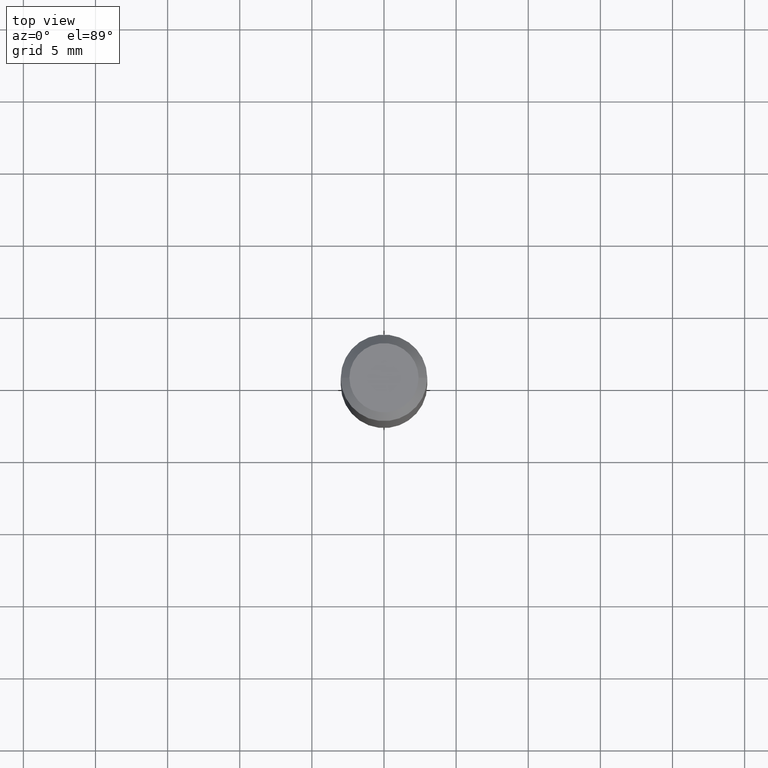
[diagram: clean part render]
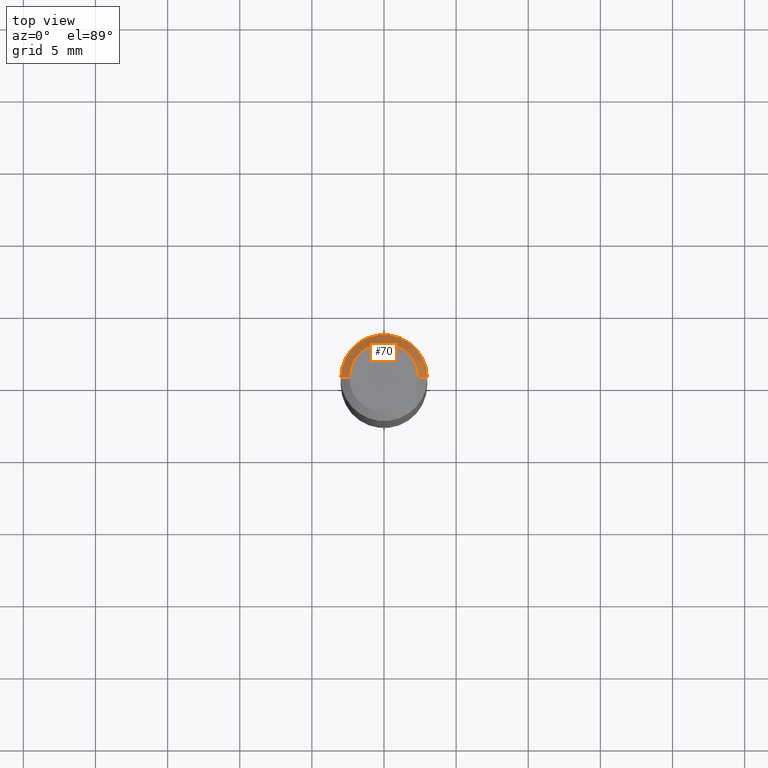
[diagram: same view with one face highlighted and labeled with its STEP entity id]
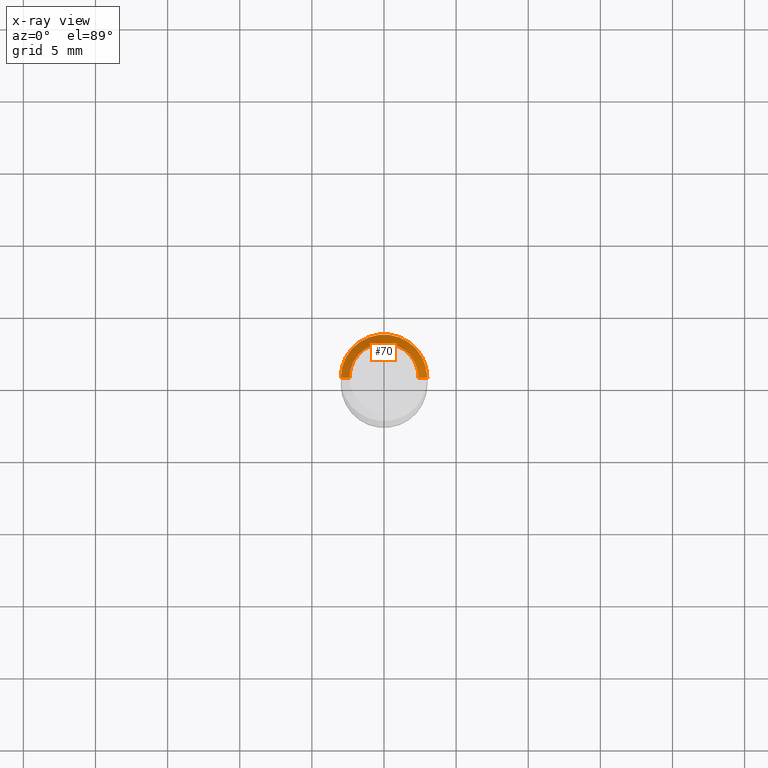
[diagram: x-ray of the same camera — body ghosted, the highlighted face saturated]
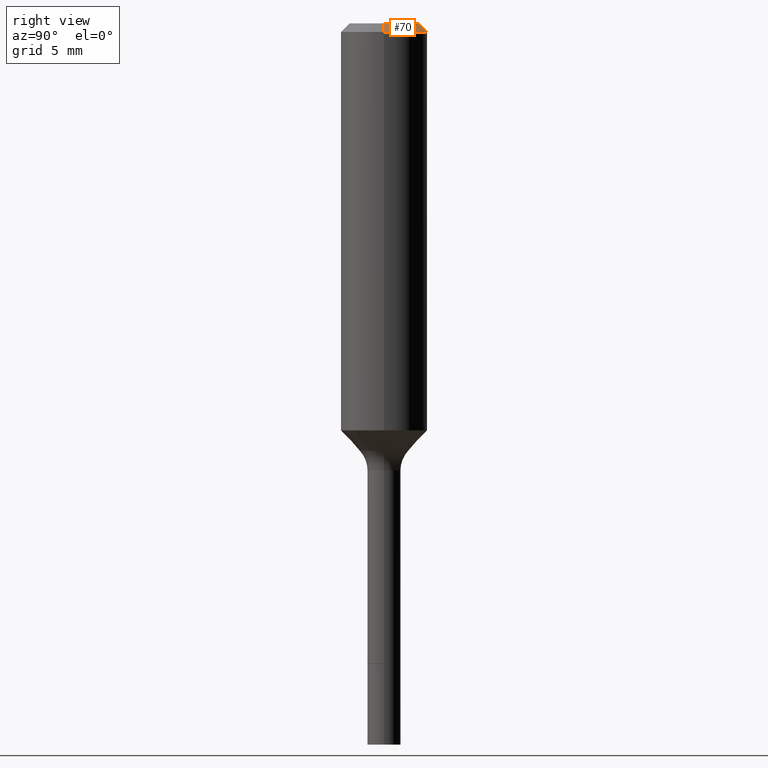
[diagram: same view with one face highlighted and labeled with its STEP entity id]
A machine part, top view. The second image highlights one B-rep face of the part: STEP entity #70.
The next image is the same camera in x-ray: the body ghosted, the highlighted face saturated — about 0% of this face is hidden behind the body in this view.
A second angle (right view) of the same face is appended — the face is thin or edge-on in the first view.
In plain terms, the highlighted conical surface has half-angle 45 deg.
Its self-contained STEP definition (entity closure, byte-faithful):
#15 = AXIS2_PLACEMENT_3D ( 'NONE', #96, #252, #222 ) ;
#52 = EDGE_CURVE ( 'NONE', #487, #494, #146, .T. ) ;
#59 = VECTOR ( 'NONE', #315, 39.37007874015748143 ) ;
#60 = CARTESIAN_POINT ( 'NONE',  ( -0.1180999999999999966, -1.141459413362170855E-15, -0.02362000000000013741 ) ) ;
#70 = ADVANCED_FACE ( 'NONE', ( #175 ), #339, .T. ) ;
#84 = CIRCLE ( 'NONE', #15, 0.1180999999999999966 ) ;
#88 = ORIENTED_EDGE ( 'NONE', *, *, #191, .F. ) ;
#96 = CARTESIAN_POINT ( 'NONE',  ( 5.776197320209326656E-31, -8.246878922347558061E-17, -0.02362000000000013741 ) ) ;
#111 = DIRECTION ( 'NONE',  ( -2.445468806185136597E-29, 3.491481338843145583E-15, 1.000000000000000000 ) ) ;
#112 = DIRECTION ( 'NONE',  ( -1.000000000000000000, 6.982962677686266711E-15, 0.000000000000000000 ) ) ;
#135 = CARTESIAN_POINT ( 'NONE',  ( -0.09447999999999998066, 7.009847083995354710E-16, -3.085620075132147757E-17 ) ) ;
#136 = ORIENTED_EDGE ( 'NONE', *, *, #52, .F. ) ;
#146 = LINE ( 'NONE', #298, #287 ) ;
#175 = FACE_OUTER_BOUND ( 'NONE', #410, .T. ) ;
#191 = EDGE_CURVE ( 'NONE', #251, #487, #248, .T. ) ;
#194 = CARTESIAN_POINT ( 'NONE',  ( 0.09447999999999998066, -7.704367267948738690E-16, -3.085620075131172158E-17 ) ) ;
#222 = DIRECTION ( 'NONE',  ( 1.000000000000000000, -6.982962677686266711E-15, 0.000000000000000000 ) ) ;
#223 = ORIENTED_EDGE ( 'NONE', *, *, #471, .T. ) ;
#234 = LINE ( 'NONE', #393, #59 ) ;
#248 = CIRCLE ( 'NONE', #382, 0.09447999999999998066 ) ;
#251 = VERTEX_POINT ( 'NONE', #194 ) ;
#252 = DIRECTION ( 'NONE',  ( -2.445468806185136597E-29, 3.491481338843145583E-15, 1.000000000000000000 ) ) ;
#262 = DIRECTION ( 'NONE',  ( -0.7071067811865461294, 2.468850131082242072E-15, -0.7071067811865489050 ) ) ;
#265 = DIRECTION ( 'NONE',  ( 2.445468806185136597E-29, -3.491481338843145583E-15, -1.000000000000000000 ) ) ;
#279 = VERTEX_POINT ( 'NONE', #437 ) ;
#282 = ORIENTED_EDGE ( 'NONE', *, *, #431, .T. ) ;
#287 = VECTOR ( 'NONE', #262, 39.37007874015748143 ) ;
#298 = CARTESIAN_POINT ( 'NONE',  ( -0.1180999999999999966, 7.422191030112725094E-16, -0.02362000000000013741 ) ) ;
#301 = CARTESIAN_POINT ( 'NONE',  ( 7.545787641473140628E-46, -1.077338491108201769E-31, -3.085620075131671975E-17 ) ) ;
#302 = AXIS2_PLACEMENT_3D ( 'NONE', #465, #265, #112 ) ;
#315 = DIRECTION ( 'NONE',  ( 0.7071067811865461294, -7.319954787623251312E-15, -0.7071067811865489050 ) ) ;
#339 = CONICAL_SURFACE ( 'NONE', #302, 0.1180999999999999966, 0.7853981633974463916 ) ;
#382 = AXIS2_PLACEMENT_3D ( 'NONE', #301, #111, #384 ) ;
#384 = DIRECTION ( 'NONE',  ( 1.000000000000000000, -6.982962677686267499E-15, 4.875432709231658792E-29 ) ) ;
#393 = CARTESIAN_POINT ( 'NONE',  ( 0.1180999999999999966, -8.926936027602933910E-16, -0.02362000000000013741 ) ) ;
#410 = EDGE_LOOP ( 'NONE', ( #88, #282, #223, #136 ) ) ;
#431 = EDGE_CURVE ( 'NONE', #251, #279, #234, .T. ) ;
#437 = CARTESIAN_POINT ( 'NONE',  ( 0.1180999999999999966, -9.071566814582237199E-16, -0.02362000000000013741 ) ) ;
#465 = CARTESIAN_POINT ( 'NONE',  ( 5.776197320209326656E-31, -8.246878922347558061E-17, -0.02362000000000013741 ) ) ;
#471 = EDGE_CURVE ( 'NONE', #279, #494, #84, .T. ) ;
#487 = VERTEX_POINT ( 'NONE', #135 ) ;
#494 = VERTEX_POINT ( 'NONE', #60 ) ;